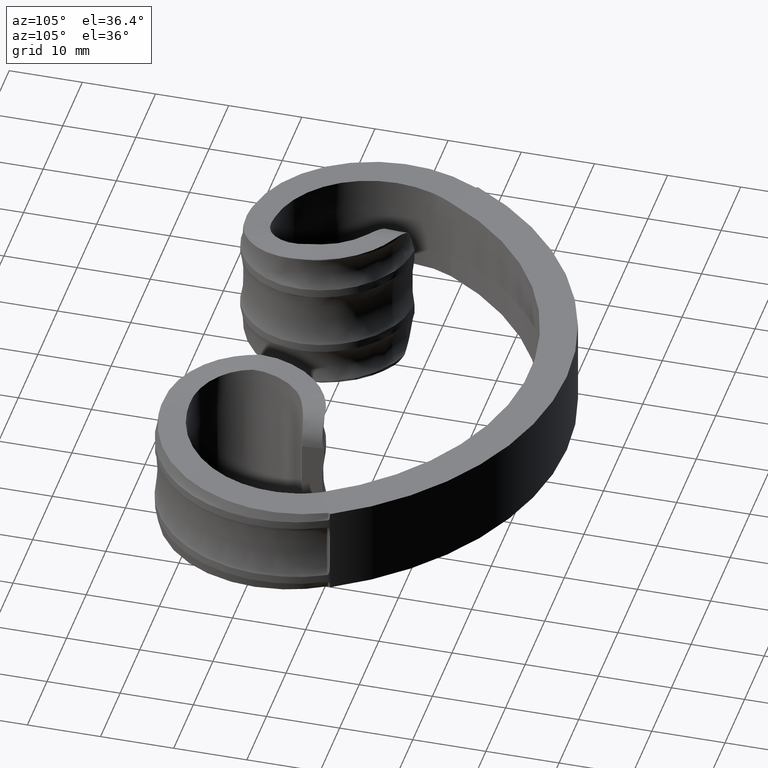
[diagram: clean part render]
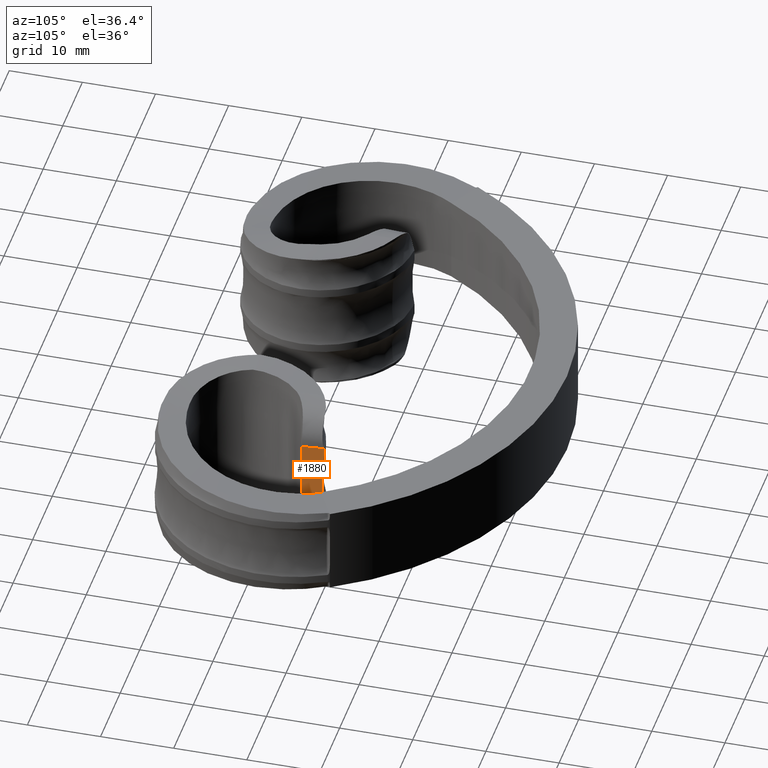
[diagram: same view with one face highlighted and labeled with its STEP entity id]
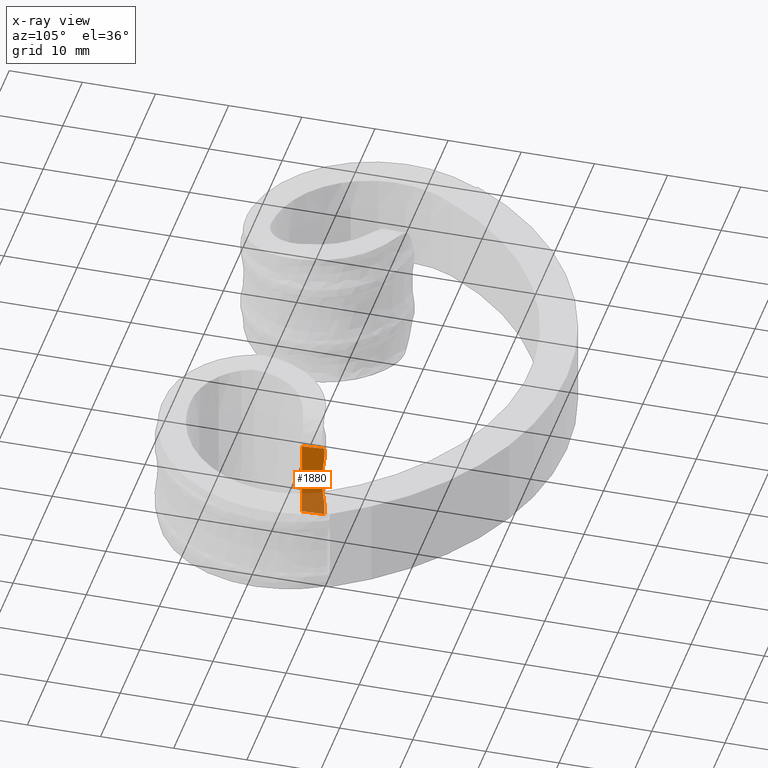
[diagram: x-ray of the same camera — body ghosted, the highlighted face saturated]
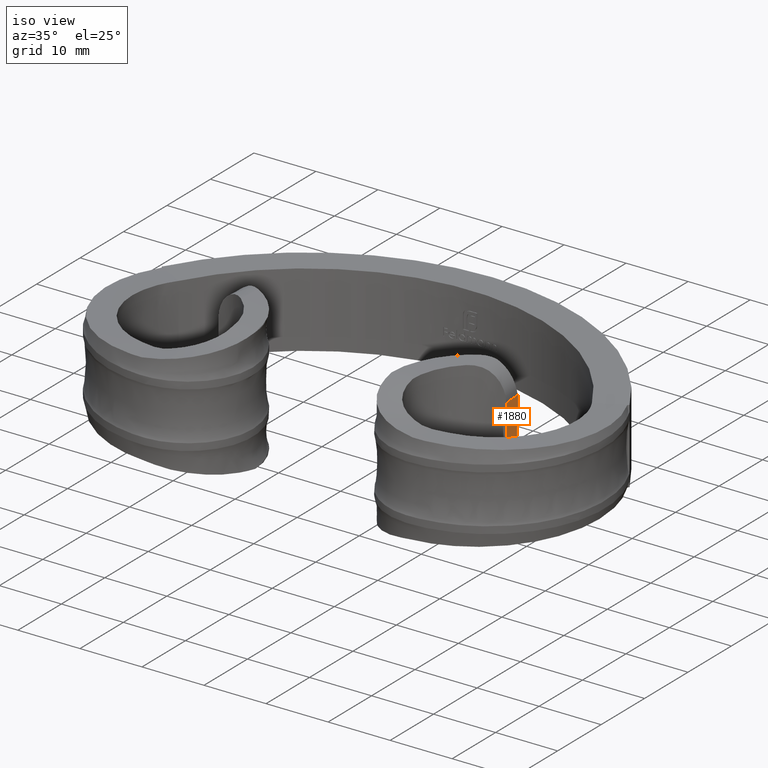
[diagram: same view with one face highlighted and labeled with its STEP entity id]
A machine part, auxiliary view. The second image highlights one B-rep face of the part: STEP entity #1880.
The next image is the same camera in x-ray: the body ghosted, the highlighted face saturated — about 31% of this face is hidden behind the body in this view.
A second angle (iso view) of the same face is appended — the face is thin or edge-on in the first view.
In plain terms, the highlighted planar face has unit normal (0.9977, 0.0671, 0).
Its self-contained STEP definition (entity closure, byte-faithful):
#40 = CARTESIAN_POINT ( 'NONE',  ( 23.00139570213015716, -2.020757133936850192, -5.254110211726903401 ) ) ;
#162 = CARTESIAN_POINT ( 'NONE',  ( 23.00000000000000355, -2.000000000000003553, -5.208712152522093852 ) ) ;
#377 = CARTESIAN_POINT ( 'NONE',  ( 23.00000000000000355, -2.000000000000003553, -5.208712152522093852 ) ) ;
#560 = CARTESIAN_POINT ( 'NONE',  ( 23.13988547455190670, -4.080402020144904718, 5.343245144216484555 ) ) ;
#600 = ORIENTED_EDGE ( 'NONE', *, *, #16689, .F. ) ;
#653 = CARTESIAN_POINT ( 'NONE',  ( 23.00274675813423286, -2.040850282630154222, 5.306475746230276513 ) ) ;
#680 = VECTOR ( 'NONE', #6096, 1000.000000000000000 ) ;
#1709 = B_SPLINE_CURVE_WITH_KNOTS ( 'NONE', 3,
 ( #14040, #15265, #16790, #12504, #4083, #5323, #18227 ),
 .UNSPECIFIED., .F., .F.,
 ( 4, 3, 4 ),
 ( 6.032506948529796381E-05, 0.001494142068793139107, 0.003000213240189269354 ),
 .UNSPECIFIED. ) ;
#1739 = VERTEX_POINT ( 'NONE', #4050 ) ;
#1880 = ADVANCED_FACE ( 'NONE', ( #10362 ), #9350, .T. ) ;
#1988 = AXIS2_PLACEMENT_3D ( 'NONE', #10773, #12200, #3665 ) ;
#2087 = CARTESIAN_POINT ( 'NONE',  ( 23.00000000000000000, -2.000000000000003553, 5.208712152522095629 ) ) ;
#2095 = CARTESIAN_POINT ( 'NONE',  ( 23.00000000000000000, -2.000000000000003553, 5.208712152522095629 ) ) ;
#2346 = ORIENTED_EDGE ( 'NONE', *, *, #11599, .T. ) ;
#2506 =( BOUNDED_CURVE ( )  B_SPLINE_CURVE ( 3, ( #162, #40, #7318, #2949 ),
 .UNSPECIFIED., .F., .F. ) 
 B_SPLINE_CURVE_WITH_KNOTS ( ( 4, 4 ),
 ( 0.4115168460675042161, 0.5476059015236275362 ),
 .UNSPECIFIED. ) 
 CURVE ( )  GEOMETRIC_REPRESENTATION_ITEM ( )  RATIONAL_B_SPLINE_CURVE ( ( 1.000000000000000000, 0.9984572428078251072, 0.9984572428078251072, 1.000000000000000000 ) ) 
 REPRESENTATION_ITEM ( '' )  );
#2750 = VECTOR ( 'NONE', #17531, 1000.000000000000000 ) ;
#2949 = CARTESIAN_POINT ( 'NONE',  ( 23.00404691495807441, -2.060186449530309716, -5.365566394122731175 ) ) ;
#3085 = ORIENTED_EDGE ( 'NONE', *, *, #4692, .F. ) ;
#3350 = CARTESIAN_POINT ( 'NONE',  ( 23.17356231434565217, -4.581250058609461107, 5.336544657577246831 ) ) ;
#3636 =( BOUNDED_CURVE ( )  B_SPLINE_CURVE ( 3, ( #10704, #11131, #18035, #8169 ),
 .UNSPECIFIED., .F., .F. ) 
 B_SPLINE_CURVE_WITH_KNOTS ( ( 4, 4 ),
 ( 3.553109499657285841, 5.871668461112081516 ),
 .UNSPECIFIED. ) 
 CURVE ( )  GEOMETRIC_REPRESENTATION_ITEM ( )  RATIONAL_B_SPLINE_CURVE ( ( 1.000000000000000000, 0.6000000000000065281, 0.6000000000000065281, 1.000000000000000000 ) ) 
 REPRESENTATION_ITEM ( '' )  );
#3665 = DIRECTION ( 'NONE',  ( 0.06708814860699233162, -0.9977470522715095047, 0.000000000000000000 ) ) ;
#4050 = CARTESIAN_POINT ( 'NONE',  ( 23.20126444582097491, -4.993241156814531401, -5.330624548710161115 ) ) ;
#4083 = CARTESIAN_POINT ( 'NONE',  ( 23.13391117405698338, -3.991551145110154408, -5.344508361311400613 ) ) ;
#4614 = VERTEX_POINT ( 'NONE', #5360 ) ;
#4692 = EDGE_CURVE ( 'NONE', #10316, #16422, #7147, .T. ) ;
#4832 = CARTESIAN_POINT ( 'NONE',  ( 23.10023364826938774, -3.490692904421273557, 5.350381334491499885 ) ) ;
#4921 = CARTESIAN_POINT ( 'NONE',  ( 23.00000000000000000, -2.000000000000003553, -10.50000000000000000 ) ) ;
#5309 = ORIENTED_EDGE ( 'NONE', *, *, #7214, .T. ) ;
#5323 = CARTESIAN_POINT ( 'NONE',  ( 23.16758825201410232, -4.492402725583351852, -5.338001851451885216 ) ) ;
#5360 = CARTESIAN_POINT ( 'NONE',  ( 23.00000000000000711, -2.000000000000003553, -3.666060555964646195 ) ) ;
#5853 = VERTEX_POINT ( 'NONE', #377 ) ;
#5959 = EDGE_LOOP ( 'NONE', ( #3085, #2346, #14249, #6796, #13625, #600, #5309, #7006 ) ) ;
#6096 = DIRECTION ( 'NONE',  ( 0.000000000000000000, -0.000000000000000000, -1.000000000000000000 ) ) ;
#6262 = EDGE_CURVE ( 'NONE', #5853, #4614, #17611, .T. ) ;
#6796 = ORIENTED_EDGE ( 'NONE', *, *, #9719, .F. ) ;
#7006 = ORIENTED_EDGE ( 'NONE', *, *, #11148, .F. ) ;
#7147 = B_SPLINE_CURVE_WITH_KNOTS ( 'NONE', 3,
 ( #17429, #8964, #3350, #7605, #560, #7668, #4832, #17483, #10275, #17543 ),
 .UNSPECIFIED., .F., .F.,
 ( 4, 3, 3, 4 ),
 ( 0.000000000000000000, 0.0006194456365926899553, 0.001506071192285875476, 0.002939888887957901528 ),
 .UNSPECIFIED. ) ;
#7214 = EDGE_CURVE ( 'NONE', #17804, #17638, #10324, .T. ) ;
#7318 = CARTESIAN_POINT ( 'NONE',  ( 23.00274675813422931, -2.040850282630163992, -5.306475746230298718 ) ) ;
#7605 = CARTESIAN_POINT ( 'NONE',  ( 23.15971106127574686, -4.375251723467980192, 5.339300561536763468 ) ) ;
#7668 = CARTESIAN_POINT ( 'NONE',  ( 23.12005964430062477, -3.785548695037820544, 5.346923908797740488 ) ) ;
#8169 = CARTESIAN_POINT ( 'NONE',  ( 23.00000000000000711, -2.000000000000003553, -3.666060555964646195 ) ) ;
#8964 = CARTESIAN_POINT ( 'NONE',  ( 23.18741345462884595, -4.787246716366548860, 5.333658827342812714 ) ) ;
#9350 = PLANE ( 'NONE',  #1988 ) ;
#9719 = EDGE_CURVE ( 'NONE', #5853, #16613, #2506, .T. ) ;
#10275 = CARTESIAN_POINT ( 'NONE',  ( 23.03610948559235183, -2.537026785757640734, 5.360986741067872430 ) ) ;
#10316 = VERTEX_POINT ( 'NONE', #10971 ) ;
#10324 = LINE ( 'NONE', #14766, #2750 ) ;
#10362 = FACE_OUTER_BOUND ( 'NONE', #5959, .T. ) ;
#10704 = CARTESIAN_POINT ( 'NONE',  ( 23.00000000000000000, -2.000000000000003553, 3.666060555964667955 ) ) ;
#10773 = CARTESIAN_POINT ( 'NONE',  ( 22.76260714224921955, 1.530549418477501700, 0.000000000000000000 ) ) ;
#10971 = CARTESIAN_POINT ( 'NONE',  ( 23.20126444582097491, -4.993241156814531401, 5.330624548710157562 ) ) ;
#11131 = CARTESIAN_POINT ( 'NONE',  ( 23.03130780268326205, -2.465615291060032188, 2.036700308869262344 ) ) ;
#11148 = EDGE_CURVE ( 'NONE', #16422, #17638, #15696, .T. ) ;
#11228 = VECTOR ( 'NONE', #14861, 1000.000000000000000 ) ;
#11599 = EDGE_CURVE ( 'NONE', #10316, #1739, #15995, .T. ) ;
#12102 = CARTESIAN_POINT ( 'NONE',  ( 23.00139570213015361, -2.020757133936844419, 5.254110211726894519 ) ) ;
#12200 = DIRECTION ( 'NONE',  ( 0.9977470522715095047, 0.06708814860699233162, 0.000000000000000000 ) ) ;
#12504 = CARTESIAN_POINT ( 'NONE',  ( 23.10023364826938419, -3.490692904421211828, -5.350381334491503438 ) ) ;
#12750 = CARTESIAN_POINT ( 'NONE',  ( 23.00404691495835507, -2.060186449532870778, 5.365566394122704530 ) ) ;
#13136 = CARTESIAN_POINT ( 'NONE',  ( 23.20126444582097491, -4.993241156814531401, -10.50000000000000000 ) ) ;
#13625 = ORIENTED_EDGE ( 'NONE', *, *, #6262, .T. ) ;
#14040 = CARTESIAN_POINT ( 'NONE',  ( 23.00404691495807441, -2.060186449530309716, -5.365566394122731175 ) ) ;
#14249 = ORIENTED_EDGE ( 'NONE', *, *, #16222, .F. ) ;
#14356 = CARTESIAN_POINT ( 'NONE',  ( 23.00000000000000000, -2.000000000000003553, 3.666060555964667955 ) ) ;
#14766 = CARTESIAN_POINT ( 'NONE',  ( 23.00000000000000000, -2.000000000000003553, -10.50000000000000000 ) ) ;
#14861 = DIRECTION ( 'NONE',  ( 0.000000000000000000, 0.000000000000000000, 1.000000000000000000 ) ) ;
#15265 = CARTESIAN_POINT ( 'NONE',  ( 23.03610948559243710, -2.537026785757607872, -5.360986741067875094 ) ) ;
#15696 =( BOUNDED_CURVE ( )  B_SPLINE_CURVE ( 3, ( #16216, #653, #12102, #2087 ),
 .UNSPECIFIED., .F., .F. ) 
 B_SPLINE_CURVE_WITH_KNOTS ( ( 4, 4 ),
 ( 2.593986752066193002, 2.730075807522283959 ),
 .UNSPECIFIED. ) 
 CURVE ( )  GEOMETRIC_REPRESENTATION_ITEM ( )  RATIONAL_B_SPLINE_CURVE ( ( 1.000000000000000000, 0.9984572428078257733, 0.9984572428078257733, 1.000000000000000000 ) ) 
 REPRESENTATION_ITEM ( '' )  );
#15995 = LINE ( 'NONE', #13136, #680 ) ;
#16216 = CARTESIAN_POINT ( 'NONE',  ( 23.00404691495835507, -2.060186449532870778, 5.365566394122704530 ) ) ;
#16222 = EDGE_CURVE ( 'NONE', #16613, #1739, #1709, .T. ) ;
#16422 = VERTEX_POINT ( 'NONE', #12750 ) ;
#16613 = VERTEX_POINT ( 'NONE', #17790 ) ;
#16689 = EDGE_CURVE ( 'NONE', #17804, #4614, #3636, .T. ) ;
#16790 = CARTESIAN_POINT ( 'NONE',  ( 23.06817179977278798, -3.013863307956228255, -5.355972552133577480 ) ) ;
#17429 = CARTESIAN_POINT ( 'NONE',  ( 23.20126444582097491, -4.993241156814531401, 5.330624548710157562 ) ) ;
#17483 = CARTESIAN_POINT ( 'NONE',  ( 23.06817179977278798, -3.013863307956272219, 5.355972552133575704 ) ) ;
#17531 = DIRECTION ( 'NONE',  ( 0.000000000000000000, 0.000000000000000000, 1.000000000000000000 ) ) ;
#17543 = CARTESIAN_POINT ( 'NONE',  ( 23.00404691495835507, -2.060186449532870778, 5.365566394122704530 ) ) ;
#17611 = LINE ( 'NONE', #4921, #11228 ) ;
#17638 = VERTEX_POINT ( 'NONE', #2095 ) ;
#17790 = CARTESIAN_POINT ( 'NONE',  ( 23.00404691495807441, -2.060186449530309716, -5.365566394122731175 ) ) ;
#17804 = VERTEX_POINT ( 'NONE', #14356 ) ;
#18035 = CARTESIAN_POINT ( 'NONE',  ( 23.03130780268326205, -2.465615291060032188, -2.036700308869197507 ) ) ;
#18227 = CARTESIAN_POINT ( 'NONE',  ( 23.20126444582097491, -4.993241156814531401, -5.330624548710161115 ) ) ;